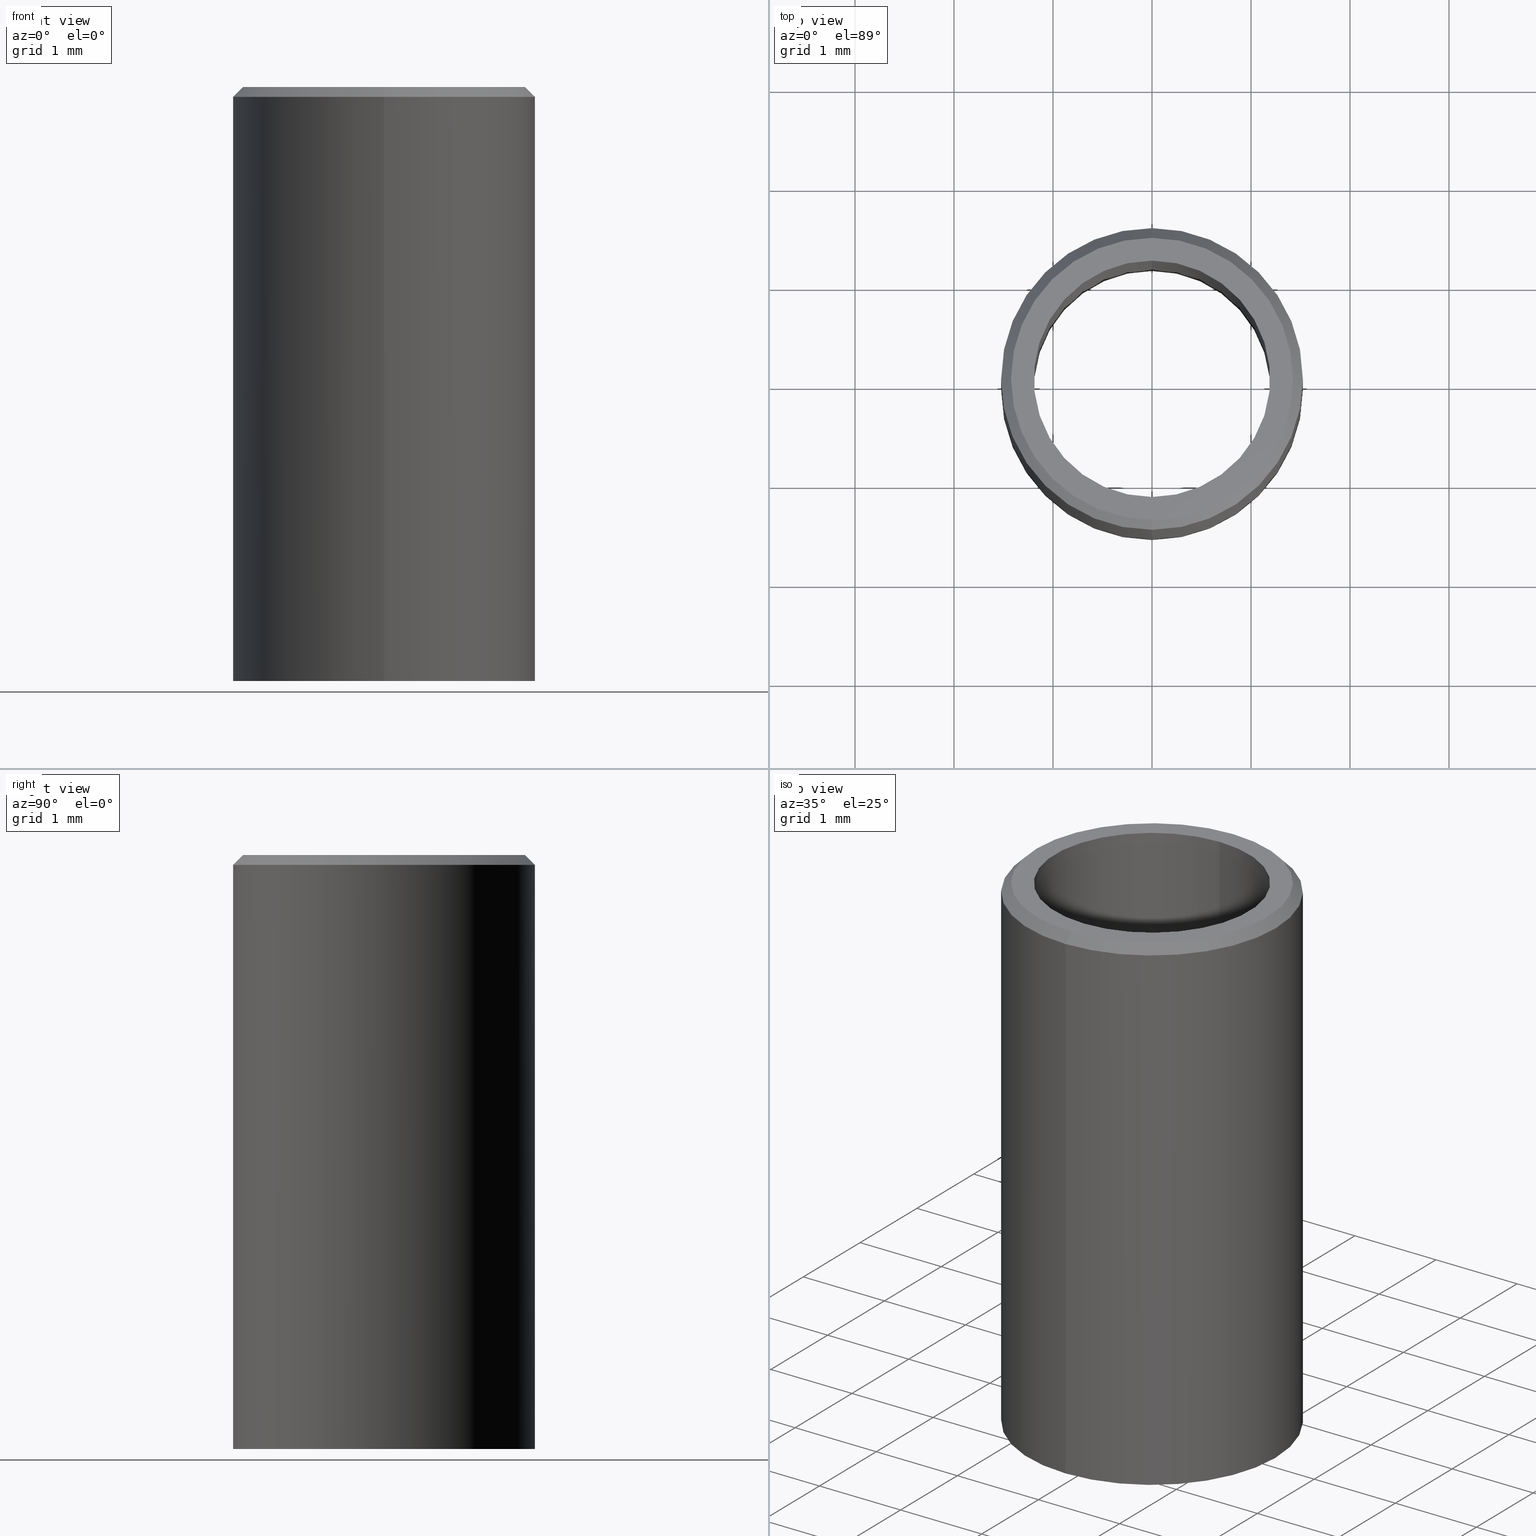
[diagram: canonical four-view strip — front | top / right | iso, engineering-drawing reading convention]
A machine part, canonical four-view strip (front | top / right | iso — engineering-drawing reading convention). The complete STEP part file that produces these views, byte-faithful:
ISO-10303-21;
HEADER;
/* Generated by software containing ST-Developer
 * from STEP Tools, Inc. (www.steptools.com) 
 */
/* OPTION: using custom schema-name function */

FILE_DESCRIPTION(
/* description */ ('VariCAD 2015-2.06 AP-214'),
/* implementation_level */ '2;1');

FILE_NAME(
/* name */ '0393-12-31A.stp',
/* time_stamp */ '2016-04-30T11:30:11-06:00',
/* author */ (''),
/* organization */ (''),
/* preprocessor_version */ 'ST-DEVELOPER v14',
/* originating_system */ 'VariCAD 2015-2.06; kernel version (20130303)',

/* authorisation */ '');

FILE_SCHEMA (('AUTOMOTIVE_DESIGN'));
ENDSEC;

DATA;
#10=MECHANICAL_DESIGN_GEOMETRIC_PRESENTATION_REPRESENTATION('',(#87),#282);
#11=CONTEXT_DEPENDENT_SHAPE_REPRESENTATION(#13,#153);
#12=NEXT_ASSEMBLY_USAGE_OCCURRENCE('','','',#154,#155,'');
#13=(
REPRESENTATION_RELATIONSHIP('','',#168,#169)
REPRESENTATION_RELATIONSHIP_WITH_TRANSFORMATION(#14)
SHAPE_REPRESENTATION_RELATIONSHIP()
);
#14=ITEM_DEFINED_TRANSFORMATION('','',#191,#171);
#15=SHAPE_REPRESENTATION_RELATIONSHIP('','',#169,#16);
#16=ADVANCED_BREP_SHAPE_REPRESENTATION('',(#17,#190),#281);
#17=MANIFOLD_SOLID_BREP('',#18);
#18=CLOSED_SHELL('',(#25,#26,#27,#28,#29,#30,#31,#32));
#19=CONICAL_SURFACE('',#188,1.424,0.785398163397445);
#20=CONICAL_SURFACE('',#189,1.424,0.785398163397447);
#21=FACE_BOUND('',#43,.F.);
#22=FACE_BOUND('',#46,.F.);
#23=PLANE('',#184);
#24=PLANE('',#186);
#25=ADVANCED_FACE('',(#33),#83,.F.);
#26=ADVANCED_FACE('',(#34),#84,.T.);
#27=ADVANCED_FACE('',(#21,#35),#23,.T.);
#28=ADVANCED_FACE('',(#36),#85,.F.);
#29=ADVANCED_FACE('',(#22,#37),#24,.T.);
#30=ADVANCED_FACE('',(#38),#86,.T.);
#31=ADVANCED_FACE('',(#39),#19,.T.);
#32=ADVANCED_FACE('',(#40),#20,.T.);
#33=FACE_OUTER_BOUND('',#41,.F.);
#34=FACE_OUTER_BOUND('',#42,.F.);
#35=FACE_OUTER_BOUND('',#44,.F.);
#36=FACE_OUTER_BOUND('',#45,.F.);
#37=FACE_OUTER_BOUND('',#47,.F.);
#38=FACE_OUTER_BOUND('',#48,.F.);
#39=FACE_OUTER_BOUND('',#49,.F.);
#40=FACE_OUTER_BOUND('',#50,.F.);
#41=EDGE_LOOP('',(#51,#52,#53,#54));
#42=EDGE_LOOP('',(#55,#56,#57,#58));
#43=EDGE_LOOP('',(#59,#60));
#44=EDGE_LOOP('',(#61,#62));
#45=EDGE_LOOP('',(#63,#64,#65,#66));
#46=EDGE_LOOP('',(#67,#68));
#47=EDGE_LOOP('',(#69,#70));
#48=EDGE_LOOP('',(#71,#72,#73,#74));
#49=EDGE_LOOP('',(#75,#76,#77,#78));
#50=EDGE_LOOP('',(#79,#80,#81,#82));
#51=ORIENTED_EDGE('',*,*,#111,.F.);
#52=ORIENTED_EDGE('',*,*,#115,.F.);
#53=ORIENTED_EDGE('',*,*,#112,.F.);
#54=ORIENTED_EDGE('',*,*,#114,.T.);
#55=ORIENTED_EDGE('',*,*,#113,.T.);
#56=ORIENTED_EDGE('',*,*,#117,.F.);
#57=ORIENTED_EDGE('',*,*,#109,.T.);
#58=ORIENTED_EDGE('',*,*,#116,.T.);
#59=ORIENTED_EDGE('',*,*,#118,.T.);
#60=ORIENTED_EDGE('',*,*,#111,.T.);
#61=ORIENTED_EDGE('',*,*,#110,.F.);
#62=ORIENTED_EDGE('',*,*,#107,.F.);
#63=ORIENTED_EDGE('',*,*,#114,.F.);
#64=ORIENTED_EDGE('',*,*,#119,.F.);
#65=ORIENTED_EDGE('',*,*,#115,.T.);
#66=ORIENTED_EDGE('',*,*,#118,.F.);
#67=ORIENTED_EDGE('',*,*,#119,.T.);
#68=ORIENTED_EDGE('',*,*,#112,.T.);
#69=ORIENTED_EDGE('',*,*,#120,.F.);
#70=ORIENTED_EDGE('',*,*,#113,.F.);
#71=ORIENTED_EDGE('',*,*,#116,.F.);
#72=ORIENTED_EDGE('',*,*,#108,.T.);
#73=ORIENTED_EDGE('',*,*,#117,.T.);
#74=ORIENTED_EDGE('',*,*,#120,.T.);
#75=ORIENTED_EDGE('',*,*,#122,.F.);
#76=ORIENTED_EDGE('',*,*,#109,.F.);
#77=ORIENTED_EDGE('',*,*,#121,.T.);
#78=ORIENTED_EDGE('',*,*,#110,.T.);
#79=ORIENTED_EDGE('',*,*,#121,.F.);
#80=ORIENTED_EDGE('',*,*,#108,.F.);
#81=ORIENTED_EDGE('',*,*,#122,.T.);
#82=ORIENTED_EDGE('',*,*,#107,.T.);
#83=CYLINDRICAL_SURFACE('',#182,1.1938);
#84=CYLINDRICAL_SURFACE('',#183,1.524);
#85=CYLINDRICAL_SURFACE('',#185,1.1938);
#86=CYLINDRICAL_SURFACE('',#187,1.524);
#87=STYLED_ITEM('',(#88),#17);
#88=PRESENTATION_STYLE_ASSIGNMENT((#89));
#89=SURFACE_STYLE_USAGE(.BOTH.,#90);
#90=SURFACE_SIDE_STYLE('',(#91));
#91=SURFACE_STYLE_FILL_AREA(#92);
#92=FILL_AREA_STYLE('',(#93));
#93=FILL_AREA_STYLE_COLOUR('',#94);
#94=COLOUR_RGB('Colour',0.862745098039216,0.737254901960784,0.282352941176471);
#95=LINE('',#261,#101);
#96=LINE('',#262,#102);
#97=LINE('',#263,#103);
#98=LINE('',#264,#104);
#99=LINE('',#268,#105);
#100=LINE('',#269,#106);
#101=VECTOR('',#210,6.);
#102=VECTOR('',#211,6.);
#103=VECTOR('',#212,5.9);
#104=VECTOR('',#213,5.9);
#105=VECTOR('',#220,0.141421356237309);
#106=VECTOR('',#221,0.141421356237309);
#107=EDGE_CURVE('',#142,#141,#123,.T.);
#108=EDGE_CURVE('',#140,#139,#124,.T.);
#109=EDGE_CURVE('',#139,#140,#125,.T.);
#110=EDGE_CURVE('',#141,#142,#126,.T.);
#111=EDGE_CURVE('',#138,#137,#127,.T.);
#112=EDGE_CURVE('',#136,#135,#128,.T.);
#113=EDGE_CURVE('',#134,#133,#129,.T.);
#114=EDGE_CURVE('',#136,#137,#95,.T.);
#115=EDGE_CURVE('',#135,#138,#96,.T.);
#116=EDGE_CURVE('',#140,#134,#97,.T.);
#117=EDGE_CURVE('',#139,#133,#98,.T.);
#118=EDGE_CURVE('',#137,#138,#130,.T.);
#119=EDGE_CURVE('',#135,#136,#131,.T.);
#120=EDGE_CURVE('',#133,#134,#132,.T.);
#121=EDGE_CURVE('',#139,#141,#99,.T.);
#122=EDGE_CURVE('',#140,#142,#100,.T.);
#123=CIRCLE('',#172,1.424);
#124=CIRCLE('',#173,1.524);
#125=CIRCLE('',#174,1.524);
#126=CIRCLE('',#175,1.424);
#127=CIRCLE('',#176,1.1938);
#128=CIRCLE('',#177,1.1938);
#129=CIRCLE('',#178,1.524);
#130=CIRCLE('',#179,1.1938);
#131=CIRCLE('',#180,1.1938);
#132=CIRCLE('',#181,1.524);
#133=VERTEX_POINT('',#244);
#134=VERTEX_POINT('',#245);
#135=VERTEX_POINT('',#246);
#136=VERTEX_POINT('',#247);
#137=VERTEX_POINT('',#248);
#138=VERTEX_POINT('',#249);
#139=VERTEX_POINT('',#250);
#140=VERTEX_POINT('',#251);
#141=VERTEX_POINT('',#252);
#142=VERTEX_POINT('',#253);
#143=PRODUCT_CATEGORY_RELATIONSHIP('','',#147,#145);
#144=PRODUCT_CATEGORY_RELATIONSHIP('','',#148,#146);
#145=PRODUCT_RELATED_PRODUCT_CATEGORY('detail','',(#160));
#146=PRODUCT_RELATED_PRODUCT_CATEGORY('detail','',(#161));
#147=PRODUCT_CATEGORY('part','');
#148=PRODUCT_CATEGORY('part','');
#149=SHAPE_DEFINITION_REPRESENTATION(#151,#168);
#150=SHAPE_DEFINITION_REPRESENTATION(#152,#169);
#151=PRODUCT_DEFINITION_SHAPE('','Shape',#154);
#152=PRODUCT_DEFINITION_SHAPE('','Shape',#155);
#153=PRODUCT_DEFINITION_SHAPE('','',#12);
#154=PRODUCT_DEFINITION('','',#156,#158);
#155=PRODUCT_DEFINITION('','',#157,#159);
#156=PRODUCT_DEFINITION_FORMATION('','',#160);
#157=PRODUCT_DEFINITION_FORMATION('','',#161);
#158=PRODUCT_DEFINITION_CONTEXT('part definition',#166,'');
#159=PRODUCT_DEFINITION_CONTEXT('part definition',#167,'');
#160=PRODUCT('0393-12-31A','0393-12-31A','not specified',(#162));
#161=PRODUCT('0393-12-31','0393-12-31','not specified',(#163));
#162=PRODUCT_CONTEXT('',#166,'mechanical');
#163=PRODUCT_CONTEXT('',#167,'mechanical');
#164=APPLICATION_PROTOCOL_DEFINITION('Draft International Standard',
'automotive_design',1997,#166);
#165=APPLICATION_PROTOCOL_DEFINITION('Draft International Standard',
'automotive_design',1997,#167);
#166=APPLICATION_CONTEXT('automotive design');
#167=APPLICATION_CONTEXT('automotive design');
#168=SHAPE_REPRESENTATION('0393-12-31A',(#170,#191),#280);
#169=SHAPE_REPRESENTATION('0393-12-31',(#171),#281);
#170=AXIS2_PLACEMENT_3D('',#242,#192,#193);
#171=AXIS2_PLACEMENT_3D('',#243,#194,#195);
#172=AXIS2_PLACEMENT_3D('',#254,#196,#197);
#173=AXIS2_PLACEMENT_3D('',#255,#198,#199);
#174=AXIS2_PLACEMENT_3D('',#256,#200,#201);
#175=AXIS2_PLACEMENT_3D('',#257,#202,#203);
#176=AXIS2_PLACEMENT_3D('',#258,#204,#205);
#177=AXIS2_PLACEMENT_3D('',#259,#206,#207);
#178=AXIS2_PLACEMENT_3D('',#260,#208,#209);
#179=AXIS2_PLACEMENT_3D('',#265,#214,#215);
#180=AXIS2_PLACEMENT_3D('',#266,#216,#217);
#181=AXIS2_PLACEMENT_3D('',#267,#218,#219);
#182=AXIS2_PLACEMENT_3D('',#270,#222,#223);
#183=AXIS2_PLACEMENT_3D('',#271,#224,#225);
#184=AXIS2_PLACEMENT_3D('',#272,#226,#227);
#185=AXIS2_PLACEMENT_3D('',#273,#228,#229);
#186=AXIS2_PLACEMENT_3D('',#274,#230,#231);
#187=AXIS2_PLACEMENT_3D('',#275,#232,#233);
#188=AXIS2_PLACEMENT_3D('',#276,#235,#234);
#189=AXIS2_PLACEMENT_3D('',#277,#237,#236);
#190=AXIS2_PLACEMENT_3D('',#278,#238,#239);
#191=AXIS2_PLACEMENT_3D('',#279,#240,#241);
#192=DIRECTION('',(0.,0.,1.));
#193=DIRECTION('',(1.,0.,0.));
#194=DIRECTION('',(0.,0.,1.));
#195=DIRECTION('',(1.,0.,0.));
#196=DIRECTION('',(0.,0.,1.));
#197=DIRECTION('',(0.,-1.,0.));
#198=DIRECTION('',(0.,0.,1.));
#199=DIRECTION('',(0.,-1.,0.));
#200=DIRECTION('',(0.,0.,1.));
#201=DIRECTION('',(0.,1.,0.));
#202=DIRECTION('',(0.,0.,1.));
#203=DIRECTION('',(0.,1.,0.));
#204=DIRECTION('',(0.,0.,1.));
#205=DIRECTION('',(0.,1.,0.));
#206=DIRECTION('',(0.,0.,-1.));
#207=DIRECTION('',(0.,-1.,0.));
#208=DIRECTION('',(0.,0.,-1.));
#209=DIRECTION('',(0.,-1.,0.));
#210=DIRECTION('',(0.,0.,1.));
#211=DIRECTION('',(0.,0.,1.));
#212=DIRECTION('',(0.,0.,-1.));
#213=DIRECTION('',(0.,0.,-1.));
#214=DIRECTION('',(0.,0.,1.));
#215=DIRECTION('',(0.,-1.,0.));
#216=DIRECTION('',(0.,0.,-1.));
#217=DIRECTION('',(0.,1.,0.));
#218=DIRECTION('',(0.,0.,-1.));
#219=DIRECTION('',(0.,1.,0.));
#220=DIRECTION('',(0.,-0.707106781186547,0.707106781186548));
#221=DIRECTION('',(0.,0.707106781186549,0.707106781186546));
#222=DIRECTION('',(0.,0.,-1.));
#223=DIRECTION('',(0.,-1.,0.));
#224=DIRECTION('',(0.,0.,-1.));
#225=DIRECTION('',(0.,-1.,0.));
#226=DIRECTION('',(0.,0.,1.));
#227=DIRECTION('',(1.,0.,0.));
#228=DIRECTION('',(0.,0.,-1.));
#229=DIRECTION('',(0.,1.,0.));
#230=DIRECTION('',(0.,0.,-1.));
#231=DIRECTION('',(-1.,0.,0.));
#232=DIRECTION('',(0.,0.,-1.));
#233=DIRECTION('',(0.,1.,0.));
#234=DIRECTION('',(0.,1.,0.));
#235=DIRECTION('',(0.,0.,-1.));
#236=DIRECTION('',(0.,-1.,0.));
#237=DIRECTION('',(0.,0.,-1.));
#238=DIRECTION('',(0.,0.,1.));
#239=DIRECTION('',(1.,0.,0.));
#240=DIRECTION('',(0.,0.,1.));
#241=DIRECTION('',(1.,0.,0.));
#242=CARTESIAN_POINT('',(0.,0.,0.));
#243=CARTESIAN_POINT('',(0.,0.,0.));
#244=CARTESIAN_POINT('',(0.,1.524,-6.));
#245=CARTESIAN_POINT('',(0.,-1.524,-6.));
#246=CARTESIAN_POINT('',(0.,1.1938,-6.));
#247=CARTESIAN_POINT('',(0.,-1.1938,-6.));
#248=CARTESIAN_POINT('',(0.,-1.1938,0.));
#249=CARTESIAN_POINT('',(0.,1.1938,0.));
#250=CARTESIAN_POINT('',(0.,1.524,-0.1));
#251=CARTESIAN_POINT('',(0.,-1.524,-0.1));
#252=CARTESIAN_POINT('',(0.,1.424,0.));
#253=CARTESIAN_POINT('',(0.,-1.424,0.));
#254=CARTESIAN_POINT('',(0.,0.,0.));
#255=CARTESIAN_POINT('',(0.,0.,-0.1));
#256=CARTESIAN_POINT('',(0.,0.,-0.1));
#257=CARTESIAN_POINT('',(0.,0.,0.));
#258=CARTESIAN_POINT('',(0.,0.,0.));
#259=CARTESIAN_POINT('',(0.,0.,-6.));
#260=CARTESIAN_POINT('',(0.,0.,-6.));
#261=CARTESIAN_POINT('',(0.,-1.1938,-6.));
#262=CARTESIAN_POINT('',(0.,1.1938,-6.));
#263=CARTESIAN_POINT('',(0.,-1.524,-0.1));
#264=CARTESIAN_POINT('',(0.,1.524,-0.1));
#265=CARTESIAN_POINT('',(0.,0.,0.));
#266=CARTESIAN_POINT('',(0.,0.,-6.));
#267=CARTESIAN_POINT('',(0.,0.,-6.));
#268=CARTESIAN_POINT('',(0.,1.524,-0.1));
#269=CARTESIAN_POINT('',(0.,-1.524,-0.1));
#270=CARTESIAN_POINT('',(0.,0.,-6.));
#271=CARTESIAN_POINT('',(0.,0.,0.));
#272=CARTESIAN_POINT('',(-1.524,-1.524,0.));
#273=CARTESIAN_POINT('',(0.,0.,-6.));
#274=CARTESIAN_POINT('',(1.55448,-1.55448,-6.));
#275=CARTESIAN_POINT('',(0.,0.,0.));
#276=CARTESIAN_POINT('',(0.,0.,0.));
#277=CARTESIAN_POINT('',(0.,0.,0.));
#278=CARTESIAN_POINT('',(0.,0.,0.));
#279=CARTESIAN_POINT('',(0.,0.,0.));
#280=(
GEOMETRIC_REPRESENTATION_CONTEXT(3)
GLOBAL_UNCERTAINTY_ASSIGNED_CONTEXT((#283))
GLOBAL_UNIT_ASSIGNED_CONTEXT((#292,#289,#286))
REPRESENTATION_CONTEXT('','')
);
#281=(
GEOMETRIC_REPRESENTATION_CONTEXT(3)
GLOBAL_UNCERTAINTY_ASSIGNED_CONTEXT((#284))
GLOBAL_UNIT_ASSIGNED_CONTEXT((#293,#290,#287))
REPRESENTATION_CONTEXT('','')
);
#282=(
GEOMETRIC_REPRESENTATION_CONTEXT(3)
GLOBAL_UNCERTAINTY_ASSIGNED_CONTEXT((#285))
GLOBAL_UNIT_ASSIGNED_CONTEXT((#294,#291,#288))
REPRESENTATION_CONTEXT('','')
);
#283=UNCERTAINTY_MEASURE_WITH_UNIT(LENGTH_MEASURE(0.001),#292,'TOL_CRV',
'CONFUSED CURVE UNCERTAINTY');
#284=UNCERTAINTY_MEASURE_WITH_UNIT(LENGTH_MEASURE(0.001),#293,'TOL_CRV',
'CONFUSED CURVE UNCERTAINTY');
#285=UNCERTAINTY_MEASURE_WITH_UNIT(LENGTH_MEASURE(0.001),#294,'TOL_CRV',
'CONFUSED CURVE UNCERTAINTY');
#286=(
NAMED_UNIT(*)
SI_UNIT($,.STERADIAN.)
SOLID_ANGLE_UNIT()
);
#287=(
NAMED_UNIT(*)
SI_UNIT($,.STERADIAN.)
SOLID_ANGLE_UNIT()
);
#288=(
NAMED_UNIT(*)
SI_UNIT($,.STERADIAN.)
SOLID_ANGLE_UNIT()
);
#289=(
NAMED_UNIT(*)
PLANE_ANGLE_UNIT()
SI_UNIT($,.RADIAN.)
);
#290=(
NAMED_UNIT(*)
PLANE_ANGLE_UNIT()
SI_UNIT($,.RADIAN.)
);
#291=(
NAMED_UNIT(*)
PLANE_ANGLE_UNIT()
SI_UNIT($,.RADIAN.)
);
#292=(
LENGTH_UNIT()
NAMED_UNIT(*)
SI_UNIT(.MILLI.,.METRE.)
);
#293=(
LENGTH_UNIT()
NAMED_UNIT(*)
SI_UNIT(.MILLI.,.METRE.)
);
#294=(
LENGTH_UNIT()
NAMED_UNIT(*)
SI_UNIT(.MILLI.,.METRE.)
);
ENDSEC;
END-ISO-10303-21;
